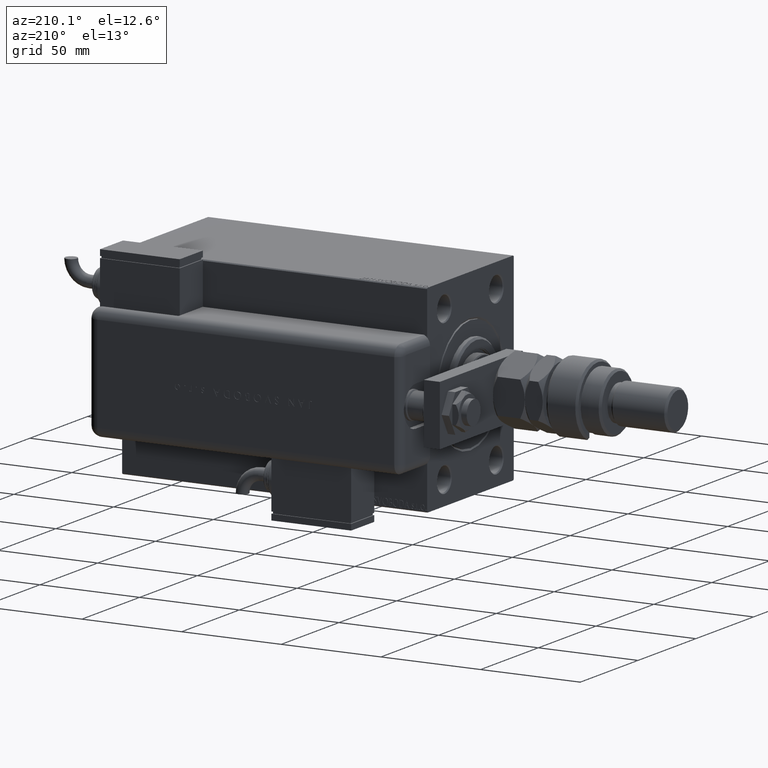
[diagram: clean part render]
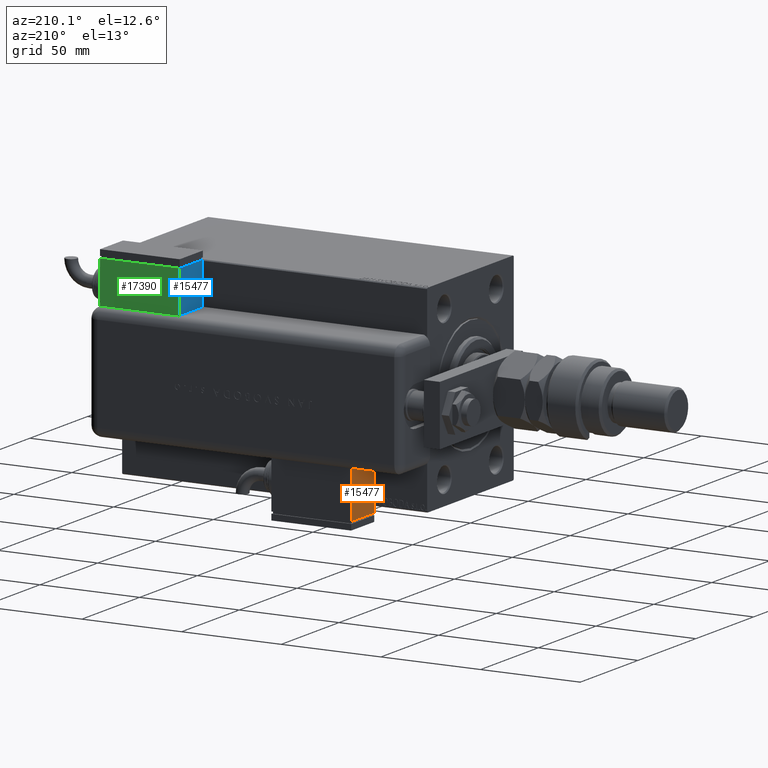
[diagram: same view with three faces highlighted in distinct colors, each labeled with its STEP entity id]
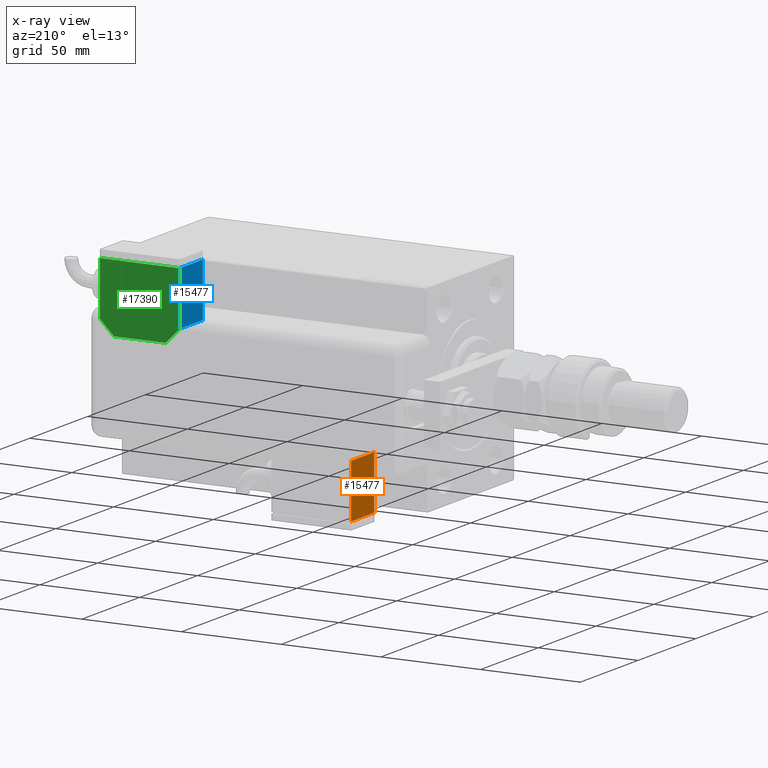
[diagram: x-ray of the same camera — body ghosted, the three highlighted faces saturated]
A machine part, auxiliary view with three faces highlighted in distinct colors.
The next image is the same camera in x-ray (body ghosted, the three faces saturated) — at least one of them is partly hidden behind the body in this view.
Their STEP definitions:

[orange] entity #15477 — the highlighted planar face has unit normal (1, -0, -0).
#1465 = CARTESIAN_POINT ( 'NONE',  ( 20.00000000000005329, -13.49999999999996092, -10.00000000000000000 ) ) ;
#2397 = DIRECTION ( 'NONE',  ( -0.000000000000000000, -0.000000000000000000, -1.000000000000000000 ) ) ;
#2792 = VERTEX_POINT ( 'NONE', #48544 ) ;
#5534 = DIRECTION ( 'NONE',  ( -0.000000000000000000, -0.000000000000000000, -1.000000000000000000 ) ) ;
#8711 = VERTEX_POINT ( 'NONE', #13208 ) ;
#9766 = EDGE_CURVE ( 'NONE', #13350, #11878, #50870, .T. ) ;
#10321 = CARTESIAN_POINT ( 'NONE',  ( 20.00000000000005329, -13.49999999999996092, 10.00000000000000000 ) ) ;
#10720 = LINE ( 'NONE', #1465, #43012 ) ;
#11640 = AXIS2_PLACEMENT_3D ( 'NONE', #17626, #52070, #52700 ) ;
#11660 = EDGE_CURVE ( 'NONE', #8711, #13350, #36918, .T. ) ;
#11878 = VERTEX_POINT ( 'NONE', #39132 ) ;
#13208 = CARTESIAN_POINT ( 'NONE',  ( 20.00000000000005329, -13.49999999999996092, 10.00000000000000000 ) ) ;
#13350 = VERTEX_POINT ( 'NONE', #45472 ) ;
#15105 = LINE ( 'NONE', #10321, #24682 ) ;
#15477 = ADVANCED_FACE ( 'NONE', ( #57181 ), #22419, .F. ) ;
#17476 = DIRECTION ( 'NONE',  ( 1.284980352575412699E-16, 1.000000000000000000, 0.000000000000000000 ) ) ;
#17626 = CARTESIAN_POINT ( 'NONE',  ( 20.00000000000005329, -13.49999999999996092, 10.00000000000000000 ) ) ;
#22419 = PLANE ( 'NONE',  #11640 ) ;
#23907 = ORIENTED_EDGE ( 'NONE', *, *, #29452, .T. ) ;
#24346 = EDGE_LOOP ( 'NONE', ( #23907, #30774, #36659, #62178 ) ) ;
#24682 = VECTOR ( 'NONE', #5534, 1000.000000000000000 ) ;
#24760 = DIRECTION ( 'NONE',  ( 1.284980352575412699E-16, 1.000000000000000000, 0.000000000000000000 ) ) ;
#29204 = EDGE_CURVE ( 'NONE', #8711, #2792, #15105, .T. ) ;
#29452 = EDGE_CURVE ( 'NONE', #2792, #11878, #10720, .T. ) ;
#30774 = ORIENTED_EDGE ( 'NONE', *, *, #9766, .F. ) ;
#36659 = ORIENTED_EDGE ( 'NONE', *, *, #11660, .F. ) ;
#36918 = LINE ( 'NONE', #61192, #49141 ) ;
#39132 = CARTESIAN_POINT ( 'NONE',  ( 20.00000000000005684, 13.50000000000003730, -10.00000000000000000 ) ) ;
#39877 = VECTOR ( 'NONE', #2397, 1000.000000000000000 ) ;
#43012 = VECTOR ( 'NONE', #24760, 1000.000000000000000 ) ;
#45472 = CARTESIAN_POINT ( 'NONE',  ( 20.00000000000005684, 13.50000000000003730, 10.00000000000000000 ) ) ;
#48544 = CARTESIAN_POINT ( 'NONE',  ( 20.00000000000005329, -13.49999999999996092, -10.00000000000000000 ) ) ;
#49141 = VECTOR ( 'NONE', #17476, 1000.000000000000000 ) ;
#50870 = LINE ( 'NONE', #55987, #39877 ) ;
#52070 = DIRECTION ( 'NONE',  ( -1.000000000000000000, 1.284980352575412699E-16, 0.000000000000000000 ) ) ;
#52700 = DIRECTION ( 'NONE',  ( -1.284980352575412699E-16, -1.000000000000000000, 0.000000000000000000 ) ) ;
#55987 = CARTESIAN_POINT ( 'NONE',  ( 20.00000000000005684, 13.50000000000003730, 10.00000000000000000 ) ) ;
#57181 = FACE_OUTER_BOUND ( 'NONE', #24346, .T. ) ;
#61192 = CARTESIAN_POINT ( 'NONE',  ( 20.00000000000005329, -13.49999999999996092, 10.00000000000000000 ) ) ;
#62178 = ORIENTED_EDGE ( 'NONE', *, *, #29204, .T. ) ;

[blue] entity #15477 — the highlighted planar face has unit normal (1, -0, -0).
#1465 = CARTESIAN_POINT ( 'NONE',  ( 20.00000000000005329, -13.49999999999996092, -10.00000000000000000 ) ) ;
#2397 = DIRECTION ( 'NONE',  ( -0.000000000000000000, -0.000000000000000000, -1.000000000000000000 ) ) ;
#2792 = VERTEX_POINT ( 'NONE', #48544 ) ;
#5534 = DIRECTION ( 'NONE',  ( -0.000000000000000000, -0.000000000000000000, -1.000000000000000000 ) ) ;
#8711 = VERTEX_POINT ( 'NONE', #13208 ) ;
#9766 = EDGE_CURVE ( 'NONE', #13350, #11878, #50870, .T. ) ;
#10321 = CARTESIAN_POINT ( 'NONE',  ( 20.00000000000005329, -13.49999999999996092, 10.00000000000000000 ) ) ;
#10720 = LINE ( 'NONE', #1465, #43012 ) ;
#11640 = AXIS2_PLACEMENT_3D ( 'NONE', #17626, #52070, #52700 ) ;
#11660 = EDGE_CURVE ( 'NONE', #8711, #13350, #36918, .T. ) ;
#11878 = VERTEX_POINT ( 'NONE', #39132 ) ;
#13208 = CARTESIAN_POINT ( 'NONE',  ( 20.00000000000005329, -13.49999999999996092, 10.00000000000000000 ) ) ;
#13350 = VERTEX_POINT ( 'NONE', #45472 ) ;
#15105 = LINE ( 'NONE', #10321, #24682 ) ;
#15477 = ADVANCED_FACE ( 'NONE', ( #57181 ), #22419, .F. ) ;
#17476 = DIRECTION ( 'NONE',  ( 1.284980352575412699E-16, 1.000000000000000000, 0.000000000000000000 ) ) ;
#17626 = CARTESIAN_POINT ( 'NONE',  ( 20.00000000000005329, -13.49999999999996092, 10.00000000000000000 ) ) ;
#22419 = PLANE ( 'NONE',  #11640 ) ;
#23907 = ORIENTED_EDGE ( 'NONE', *, *, #29452, .T. ) ;
#24346 = EDGE_LOOP ( 'NONE', ( #23907, #30774, #36659, #62178 ) ) ;
#24682 = VECTOR ( 'NONE', #5534, 1000.000000000000000 ) ;
#24760 = DIRECTION ( 'NONE',  ( 1.284980352575412699E-16, 1.000000000000000000, 0.000000000000000000 ) ) ;
#29204 = EDGE_CURVE ( 'NONE', #8711, #2792, #15105, .T. ) ;
#29452 = EDGE_CURVE ( 'NONE', #2792, #11878, #10720, .T. ) ;
#30774 = ORIENTED_EDGE ( 'NONE', *, *, #9766, .F. ) ;
#36659 = ORIENTED_EDGE ( 'NONE', *, *, #11660, .F. ) ;
#36918 = LINE ( 'NONE', #61192, #49141 ) ;
#39132 = CARTESIAN_POINT ( 'NONE',  ( 20.00000000000005684, 13.50000000000003730, -10.00000000000000000 ) ) ;
#39877 = VECTOR ( 'NONE', #2397, 1000.000000000000000 ) ;
#43012 = VECTOR ( 'NONE', #24760, 1000.000000000000000 ) ;
#45472 = CARTESIAN_POINT ( 'NONE',  ( 20.00000000000005684, 13.50000000000003730, 10.00000000000000000 ) ) ;
#48544 = CARTESIAN_POINT ( 'NONE',  ( 20.00000000000005329, -13.49999999999996092, -10.00000000000000000 ) ) ;
#49141 = VECTOR ( 'NONE', #17476, 1000.000000000000000 ) ;
#50870 = LINE ( 'NONE', #55987, #39877 ) ;
#52070 = DIRECTION ( 'NONE',  ( -1.000000000000000000, 1.284980352575412699E-16, 0.000000000000000000 ) ) ;
#52700 = DIRECTION ( 'NONE',  ( -1.284980352575412699E-16, -1.000000000000000000, 0.000000000000000000 ) ) ;
#55987 = CARTESIAN_POINT ( 'NONE',  ( 20.00000000000005684, 13.50000000000003730, 10.00000000000000000 ) ) ;
#57181 = FACE_OUTER_BOUND ( 'NONE', #24346, .T. ) ;
#61192 = CARTESIAN_POINT ( 'NONE',  ( 20.00000000000005329, -13.49999999999996092, 10.00000000000000000 ) ) ;
#62178 = ORIENTED_EDGE ( 'NONE', *, *, #29204, .T. ) ;

[green] entity #17390 — the highlighted planar face has unit normal (-0, -1, 0).
#904 = DIRECTION ( 'NONE',  ( -0.7071067811865479058, 0.7071067811865470176, -0.000000000000000000 ) ) ;
#1465 = CARTESIAN_POINT ( 'NONE',  ( 20.00000000000005329, -13.49999999999996092, -10.00000000000000000 ) ) ;
#2792 = VERTEX_POINT ( 'NONE', #48544 ) ;
#3251 = ORIENTED_EDGE ( 'NONE', *, *, #4292, .F. ) ;
#3886 = LINE ( 'NONE', #13153, #54725 ) ;
#4292 = EDGE_CURVE ( 'NONE', #11878, #38302, #44276, .T. ) ;
#5469 = VERTEX_POINT ( 'NONE', #12603 ) ;
#7041 = EDGE_LOOP ( 'NONE', ( #60501, #54806, #3251, #17403, #29598, #44538, #40185 ) ) ;
#7713 = CARTESIAN_POINT ( 'NONE',  ( 0.000000000000000000, 0.000000000000000000, -10.00000000000000000 ) ) ;
#8016 = CARTESIAN_POINT ( 'NONE',  ( 12.99999999999999112, 20.50000000000009592, -10.00000000000000000 ) ) ;
#8653 = EDGE_CURVE ( 'NONE', #57015, #2792, #55975, .T. ) ;
#9301 = DIRECTION ( 'NONE',  ( -1.284980352575421081E-16, -1.000000000000000000, -0.000000000000000000 ) ) ;
#10720 = LINE ( 'NONE', #1465, #43012 ) ;
#10901 = EDGE_CURVE ( 'NONE', #12349, #38302, #28523, .T. ) ;
#11860 = FACE_OUTER_BOUND ( 'NONE', #7041, .T. ) ;
#11878 = VERTEX_POINT ( 'NONE', #39132 ) ;
#12349 = VERTEX_POINT ( 'NONE', #15925 ) ;
#12603 = CARTESIAN_POINT ( 'NONE',  ( -19.99999999999993960, 2.569960705150834076E-15, -9.999999999999996447 ) ) ;
#13153 = CARTESIAN_POINT ( 'NONE',  ( -19.99999999999994316, -13.49999999999996092, -10.00000000000000000 ) ) ;
#15021 = EDGE_CURVE ( 'NONE', #12349, #40344, #56514, .T. ) ;
#15925 = CARTESIAN_POINT ( 'NONE',  ( -12.99999999999994138, 20.50000000000009592, -10.00000000000000000 ) ) ;
#16327 = DIRECTION ( 'NONE',  ( 0.000000000000000000, 0.000000000000000000, 1.000000000000000000 ) ) ;
#17390 = ADVANCED_FACE ( 'NONE', ( #11860 ), #31297, .F. ) ;
#17403 = ORIENTED_EDGE ( 'NONE', *, *, #29452, .F. ) ;
#19818 = CARTESIAN_POINT ( 'NONE',  ( -19.99999999999994316, -13.49999999999996092, -10.00000000000000000 ) ) ;
#24760 = DIRECTION ( 'NONE',  ( 1.284980352575412699E-16, 1.000000000000000000, 0.000000000000000000 ) ) ;
#25535 = VECTOR ( 'NONE', #904, 1000.000000000000114 ) ;
#25660 = VECTOR ( 'NONE', #47975, 1000.000000000000000 ) ;
#25744 = CARTESIAN_POINT ( 'NONE',  ( 9.999999999999984013, 23.50000000000009592, -10.00000000000000000 ) ) ;
#26122 = VECTOR ( 'NONE', #9301, 1000.000000000000000 ) ;
#28523 = LINE ( 'NONE', #53095, #25660 ) ;
#29452 = EDGE_CURVE ( 'NONE', #2792, #11878, #10720, .T. ) ;
#29598 = ORIENTED_EDGE ( 'NONE', *, *, #8653, .F. ) ;
#31297 = PLANE ( 'NONE',  #55555 ) ;
#33871 = VECTOR ( 'NONE', #45745, 1000.000000000000000 ) ;
#36709 = DIRECTION ( 'NONE',  ( 1.000000000000000000, 0.000000000000000000, -0.000000000000000000 ) ) ;
#36789 = CARTESIAN_POINT ( 'NONE',  ( -19.99999999999994316, -13.49999999999996092, -10.00000000000000000 ) ) ;
#37741 = CARTESIAN_POINT ( 'NONE',  ( -19.99999999999993960, 13.49999999999986500, -10.00000000000000000 ) ) ;
#38302 = VERTEX_POINT ( 'NONE', #8016 ) ;
#39132 = CARTESIAN_POINT ( 'NONE',  ( 20.00000000000005684, 13.50000000000003730, -10.00000000000000000 ) ) ;
#40185 = ORIENTED_EDGE ( 'NONE', *, *, #43701, .F. ) ;
#40344 = VERTEX_POINT ( 'NONE', #37741 ) ;
#43012 = VECTOR ( 'NONE', #24760, 1000.000000000000000 ) ;
#43701 = EDGE_CURVE ( 'NONE', #40344, #5469, #53316, .T. ) ;
#44276 = LINE ( 'NONE', #25744, #25535 ) ;
#44538 = ORIENTED_EDGE ( 'NONE', *, *, #44581, .F. ) ;
#44581 = EDGE_CURVE ( 'NONE', #5469, #57015, #3886, .T. ) ;
#45745 = DIRECTION ( 'NONE',  ( 1.000000000000000000, 0.000000000000000000, 0.000000000000000000 ) ) ;
#46062 = CARTESIAN_POINT ( 'NONE',  ( -19.99999999999994316, -13.49999999999996092, -10.00000000000000000 ) ) ;
#47975 = DIRECTION ( 'NONE',  ( 1.000000000000000000, 0.000000000000000000, 0.000000000000000000 ) ) ;
#48544 = CARTESIAN_POINT ( 'NONE',  ( 20.00000000000005329, -13.49999999999996092, -10.00000000000000000 ) ) ;
#49258 = VECTOR ( 'NONE', #51720, 1000.000000000000000 ) ;
#51720 = DIRECTION ( 'NONE',  ( -0.7071067811865356934, -0.7071067811865593411, -0.000000000000000000 ) ) ;
#51746 = DIRECTION ( 'NONE',  ( -1.284980352575421081E-16, -1.000000000000000000, -0.000000000000000000 ) ) ;
#53095 = CARTESIAN_POINT ( 'NONE',  ( 0.000000000000000000, 20.50000000000009592, -10.00000000000000000 ) ) ;
#53316 = LINE ( 'NONE', #19818, #26122 ) ;
#54725 = VECTOR ( 'NONE', #51746, 1000.000000000000000 ) ;
#54806 = ORIENTED_EDGE ( 'NONE', *, *, #10901, .T. ) ;
#55555 = AXIS2_PLACEMENT_3D ( 'NONE', #7713, #16327, #36709 ) ;
#55975 = LINE ( 'NONE', #46062, #33871 ) ;
#56514 = LINE ( 'NONE', #60674, #49258 ) ;
#57015 = VERTEX_POINT ( 'NONE', #36789 ) ;
#60501 = ORIENTED_EDGE ( 'NONE', *, *, #15021, .F. ) ;
#60674 = CARTESIAN_POINT ( 'NONE',  ( -19.99999999999993960, 13.49999999999986500, -10.00000000000000000 ) ) ;